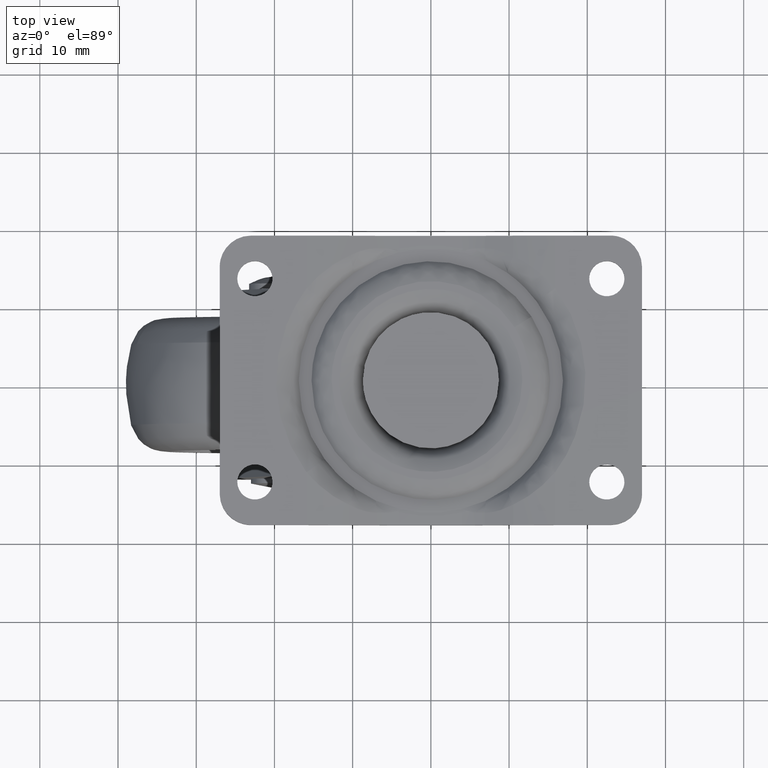
[diagram: clean part render]
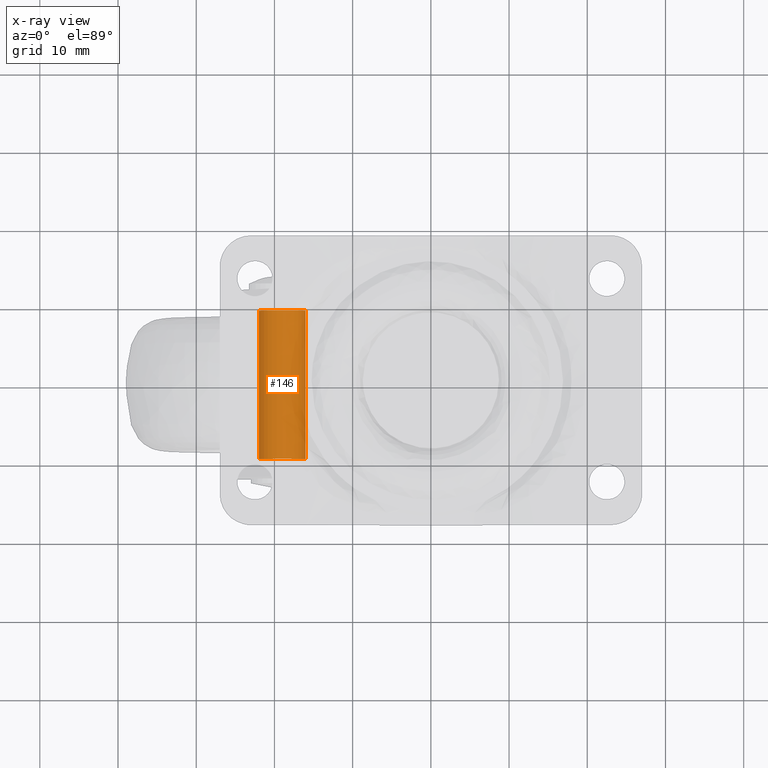
[diagram: x-ray — body ghosted, one internal face saturated and labeled with its STEP entity id]
A machine part, top view, then the same camera in x-ray: the body is ghosted and one INTERNAL B-rep face — a face not visible from any outside direction — is saturated and labeled: STEP entity #146.
In plain terms, the highlighted face is a freeform B-spline surface patch.
Its self-contained STEP definition (entity closure, byte-faithful):
#44=CARTESIAN_POINT('',(-16.011041325645365,9.975000000000001,-35.355468046316943));
#45=CARTESIAN_POINT('',(-16.000873277499704,9.975000000000001,-35.269925333200419));
#46=CARTESIAN_POINT('',(-15.995614256750180,9.975000000000001,-35.183941104000020));
#47=CARTESIAN_POINT('',(-15.811858152750265,9.975000000000001,-32.179555360750207));
#48=CARTESIAN_POINT('',(-18.816243896000081,9.975000000000001,-31.995799256750281));
#49=CARTESIAN_POINT('',(-21.820629639249894,9.975000000000001,-31.812043152750363));
#50=CARTESIAN_POINT('',(-22.004385743249820,9.975000000000001,-34.816428896000183));
#51=CARTESIAN_POINT('',(-16.011041325645365,-9.986875000000000,-35.355468046316943));
#52=CARTESIAN_POINT('',(-16.000873277499704,-9.986874999999998,-35.269925333200419));
#53=CARTESIAN_POINT('',(-15.995614256750180,-9.986874999999998,-35.183941104000020));
#54=CARTESIAN_POINT('',(-15.811858152750265,-9.986874999999998,-32.179555360750207));
#55=CARTESIAN_POINT('',(-18.816243896000081,-9.986874999999998,-31.995799256750281));
#56=CARTESIAN_POINT('',(-21.820629639249894,-9.986874999999998,-31.812043152750363));
#57=CARTESIAN_POINT('',(-22.004385743249820,-9.986874999999998,-34.816428896000183));
#65=(BOUNDED_SURFACE()B_SPLINE_SURFACE(2,1,((#44,#51),(#45,#52),(#46,#53),(#47,#54),(#48,#55),(#49,#56),(#50,#57)),.UNSPECIFIED.,.F.,.F.,.U.)B_SPLINE_SURFACE_WITH_KNOTS((3,2,2,3),(2,2),(0.0,0.199485251638883,5.186616542610948,10.173747833583009),(0.0,19.961874999999999),.UNSPECIFIED.)GEOMETRIC_REPRESENTATION_ITEM()RATIONAL_B_SPLINE_SURFACE(((0.977505800795127,0.977505800795127),(0.988284271247462,0.988284271247462),(1.0,1.0),(0.707106781186548,0.707106781186548),(1.0,1.0),(0.707106781186548,0.707106781186548),(1.0,1.0)))REPRESENTATION_ITEM('')SURFACE());
#66=CARTESIAN_POINT('',(-16.011041325663140,-9.499999999999998,-35.355468046466513));
#67=VERTEX_POINT('',#66);
#68=CARTESIAN_POINT('',(-19.0,-9.500000000000000,-31.990185000000100));
#69=VERTEX_POINT('',#68);
#70=CARTESIAN_POINT('',(-16.011041325663147,-9.499999999999998,-35.355468046466505));
#71=CARTESIAN_POINT('',(-15.990000000000000,-9.500000000000000,-35.178449600303502));
#72=CARTESIAN_POINT('',(-15.990000000000000,-9.500000000000000,-35.000185000000101));
#73=CARTESIAN_POINT('',(-15.990000000000007,-9.500000000000000,-31.990185000000103));
#74=CARTESIAN_POINT('',(-19.0,-9.500000000000000,-31.990185000000100));
#82=(BOUNDED_CURVE()B_SPLINE_CURVE(2,(#70,#71,#72,#73,#74),.UNSPECIFIED.,.F.,.U.)B_SPLINE_CURVE_WITH_KNOTS((3,2,3),(0.229562473498730,0.250000000000000,0.500000000000000),.UNSPECIFIED.)CURVE()GEOMETRIC_REPRESENTATION_ITEM()RATIONAL_B_SPLINE_CURVE((0.956026754154734,0.976055948313832,1.0,0.707106781186548,1.0))REPRESENTATION_ITEM(''));
#83=EDGE_CURVE('',#67,#69,#82,.T.);
#84=ORIENTED_EDGE('',*,*,#83,.T.);
#85=CARTESIAN_POINT('',(-22.004385743237979,-9.500000000000000,-34.816428895806538));
#86=VERTEX_POINT('',#85);
#87=CARTESIAN_POINT('',(-19.0,-9.500000000000000,-31.990185000000100));
#88=CARTESIAN_POINT('',(-21.831525261020438,-9.499999999999998,-31.990185000000100));
#89=CARTESIAN_POINT('',(-22.004385743237972,-9.500000000000000,-34.816428895806538));
#97=(BOUNDED_CURVE()B_SPLINE_CURVE(2,(#87,#88,#89),.UNSPECIFIED.,.F.,.U.)B_SPLINE_CURVE_WITH_KNOTS((3,3),(0.500000000000000,0.739332962219725),.UNSPECIFIED.)CURVE()GEOMETRIC_REPRESENTATION_ITEM()RATIONAL_B_SPLINE_CURVE((1.0,0.719603993309226,0.976072041625530))REPRESENTATION_ITEM(''));
#98=EDGE_CURVE('',#69,#86,#97,.T.);
#99=ORIENTED_EDGE('',*,*,#98,.T.);
#100=CARTESIAN_POINT('',(-22.004385743237979,9.500000000000000,-34.816428895806531));
#101=VERTEX_POINT('',#100);
#102=CARTESIAN_POINT('',(-22.004385743237979,9.500000000000000,-34.816428895806531));
#103=CARTESIAN_POINT('',(-22.004385743237979,-9.500000000000000,-34.816428895806538));
#104=QUASI_UNIFORM_CURVE('',1,(#102,#103),.UNSPECIFIED.,.F.,.U.);
#105=EDGE_CURVE('',#101,#86,#104,.T.);
#106=ORIENTED_EDGE('',*,*,#105,.F.);
#107=CARTESIAN_POINT('',(-19.0,9.500000000000000,-31.990185000000100));
#108=VERTEX_POINT('',#107);
#109=CARTESIAN_POINT('',(-19.0,9.500000000000000,-31.990185000000100));
#110=CARTESIAN_POINT('',(-21.831525261020438,9.499999999999998,-31.990185000000100));
#111=CARTESIAN_POINT('',(-22.004385743237972,9.500000000000000,-34.816428895806531));
#119=(BOUNDED_CURVE()B_SPLINE_CURVE(2,(#109,#110,#111),.UNSPECIFIED.,.F.,.U.)B_SPLINE_CURVE_WITH_KNOTS((3,3),(0.500000000000000,0.739332962219725),.UNSPECIFIED.)CURVE()GEOMETRIC_REPRESENTATION_ITEM()RATIONAL_B_SPLINE_CURVE((1.0,0.719603993309226,0.976072041625530))REPRESENTATION_ITEM(''));
#120=EDGE_CURVE('',#108,#101,#119,.T.);
#121=ORIENTED_EDGE('',*,*,#120,.F.);
#122=CARTESIAN_POINT('',(-16.011041325663140,9.500000000000000,-35.355468046466513));
#123=VERTEX_POINT('',#122);
#124=CARTESIAN_POINT('',(-16.011041325663147,9.500000000000000,-35.355468046466513));
#125=CARTESIAN_POINT('',(-15.990000000000006,9.500000000000000,-35.178449600303502));
#126=CARTESIAN_POINT('',(-15.990000000000000,9.500000000000000,-35.000185000000101));
#127=CARTESIAN_POINT('',(-15.990000000000007,9.500000000000000,-31.990185000000103));
#128=CARTESIAN_POINT('',(-19.0,9.500000000000000,-31.990185000000100));
#136=(BOUNDED_CURVE()B_SPLINE_CURVE(2,(#124,#125,#126,#127,#128),.UNSPECIFIED.,.F.,.U.)B_SPLINE_CURVE_WITH_KNOTS((3,2,3),(0.229562473498730,0.250000000000000,0.500000000000000),.UNSPECIFIED.)CURVE()GEOMETRIC_REPRESENTATION_ITEM()RATIONAL_B_SPLINE_CURVE((0.956026754154734,0.976055948313831,1.0,0.707106781186548,1.0))REPRESENTATION_ITEM(''));
#137=EDGE_CURVE('',#123,#108,#136,.T.);
#138=ORIENTED_EDGE('',*,*,#137,.F.);
#139=CARTESIAN_POINT('',(-16.011041325663140,9.500000000000000,-35.355468046466513));
#140=CARTESIAN_POINT('',(-16.011041325663140,-9.499999999999998,-35.355468046466513));
#141=QUASI_UNIFORM_CURVE('',1,(#139,#140),.UNSPECIFIED.,.F.,.U.);
#142=EDGE_CURVE('',#123,#67,#141,.T.);
#143=ORIENTED_EDGE('',*,*,#142,.T.);
#144=EDGE_LOOP('',(#84,#99,#106,#121,#138,#143));
#145=FACE_OUTER_BOUND('',#144,.T.);
#146=ADVANCED_FACE('',(#145),#65,.F.);